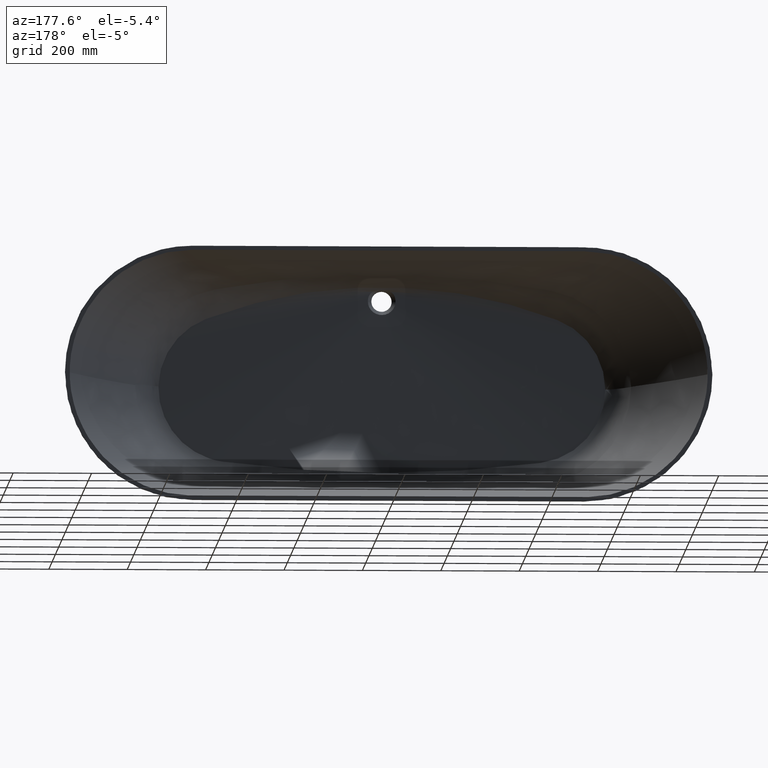
[diagram: clean part render]
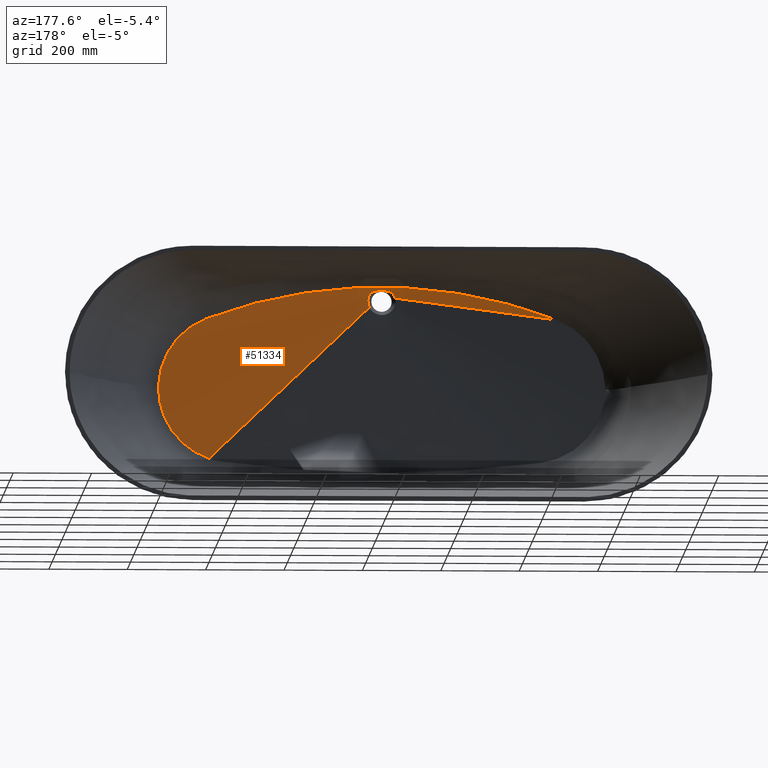
[diagram: same view with one face highlighted and labeled with its STEP entity id]
A machine part, auxiliary view. The second image highlights one B-rep face of the part: STEP entity #51334.
In plain terms, the highlighted face is a freeform B-spline surface patch.
Its self-contained STEP definition (entity closure, byte-faithful):
#37 = CARTESIAN_POINT ( 'NONE',  ( -23.00614516902584200, -424.0039371916735100, 248.7501181952682100 ) ) ;
#268 = CARTESIAN_POINT ( 'NONE',  ( -9.377975086289749700, -423.2680967660167000, 252.0080633974745600 ) ) ;
#493 = CARTESIAN_POINT ( 'NONE',  ( 2.124285967042967900, -422.7144712979068700, 252.7039210966738900 ) ) ;
#729 = CARTESIAN_POINT ( 'NONE',  ( 15.69031374276650600, -423.6030712241217800, 251.0214739815943100 ) ) ;
#806 = CARTESIAN_POINT ( 'NONE',  ( -472.9245815201917900, -413.0000000000009700, 166.5346253813009700 ) ) ;
#966 = CARTESIAN_POINT ( 'NONE',  ( 27.76263244139102300, -424.3417389187127900, 245.3370227152951500 ) ) ;
#1044 = CARTESIAN_POINT ( 'NONE',  ( -25.64593049620542000, -425.0000000000000600, 229.3394419978908200 ) ) ;
#1199 = CARTESIAN_POINT ( 'NONE',  ( 34.88302632799096900, -424.7480237833514100, 230.3919965032363800 ) ) ;
#1279 = CARTESIAN_POINT ( 'NONE',  ( -604.3700917869159600, -412.2307302581428400, -39.97847088234773600 ) ) ;
#1429 = CARTESIAN_POINT ( 'NONE',  ( 33.19555469158829900, -424.7988222293095100, 212.7357337632635400 ) ) ;
#1452 = VERTEX_POINT ( 'NONE', #54355 ) ;
#1509 = CARTESIAN_POINT ( 'NONE',  ( -535.8615676917243000, -412.8800000000009000, -120.4869199196747200 ) ) ;
#1736 = CARTESIAN_POINT ( 'NONE',  ( -458.1462615384935500, -412.9999999999985800, -173.9976856248993000 ) ) ;
#1959 = CARTESIAN_POINT ( 'NONE',  ( -23.15767781832331100, -425.0000000000000600, 213.1250764948728400 ) ) ;
#2059 = EDGE_CURVE ( 'NONE', #45975, #1452, #24423, .T. ) ;
#2191 = CARTESIAN_POINT ( 'NONE',  ( -102.9091206876793300, -412.2307302581443800, -240.5113001775968700 ) ) ;
#2425 = CARTESIAN_POINT ( 'NONE',  ( 197.5120452849969600, -412.8800000000002800, -213.4599540811258600 ) ) ;
#2656 = CARTESIAN_POINT ( 'NONE',  ( 386.4749614839070100, -413.0000000000000000, -190.7962144448329700 ) ) ;
#2884 = CARTESIAN_POINT ( 'NONE',  ( 24.73315166886579100, -425.0000000000000000, 216.9448197820347600 ) ) ;
#3110 = CARTESIAN_POINT ( 'NONE',  ( 582.4325061492073700, -412.2307302581436900, -109.1140688530420100 ) ) ;
#3335 = CARTESIAN_POINT ( 'NONE',  ( 576.1973316224718900, -412.8800000000011300, 8.389105814926363500 ) ) ;
#3561 = CARTESIAN_POINT ( 'NONE',  ( 539.3036150971332700, -413.0000000000000600, 105.2052511763196300 ) ) ;
#3789 = CARTESIAN_POINT ( 'NONE',  ( 24.66520390404318900, -425.0000000000000000, 233.2690036027954100 ) ) ;
#4014 = CARTESIAN_POINT ( 'NONE',  ( 353.8179101234497900, -412.2307302581444300, 213.6825440231752700 ) ) ;
#4231 = CARTESIAN_POINT ( 'NONE',  ( 111.5468464901684300, -412.8799999999979500, 256.8348277613864600 ) ) ;
#4403 = B_SPLINE_SURFACE_WITH_KNOTS ( 'NONE', 3, 1, ( 
 ( #11207, #5662, #48040, #16551 ),
 ( #53346, #21886, #58596, #27146 ),
 ( #63863, #32401, #806, #37709 ),
 ( #6126, #42971, #11445, #48272 ),
 ( #16789, #53584, #22121, #58831 ),
 ( #27383, #64100, #32638, #1044 ),
 ( #37943, #6372, #43222, #11680 ),
 ( #48510, #17021, #53827, #22361 ),
 ( #59071, #27615, #64334, #32867 ),
 ( #1279, #38176, #6602, #43452 ),
 ( #11913, #48739, #17259, #54053 ),
 ( #22589, #59303, #27851, #64567 ),
 ( #33097, #1509, #38411, #6832 ),
 ( #43679, #12141, #48975, #17496 ),
 ( #54285, #22811, #59527, #28075 ),
 ( #64795, #33325, #1736, #38637 ),
 ( #7059, #43899, #12374, #49198 ),
 ( #17717, #54503, #23040, #59751 ),
 ( #28297, #65021, #33548, #1959 ),
 ( #38855, #7289, #44122, #12609 ),
 ( #49431, #17954, #54737, #23270 ),
 ( #59980, #28525, #65248, #33782 ),
 ( #2191, #39083, #7519, #44352 ),
 ( #12833, #49667, #18184, #54965 ),
 ( #23499, #60209, #28755, #65470 ),
 ( #34011, #2425, #39313, #7746 ),
 ( #44578, #13067, #49888, #18404 ),
 ( #55197, #23720, #60440, #28979 ),
 ( #65694, #34243, #2656, #39544 ),
 ( #7971, #44806, #13299, #50121 ),
 ( #18634, #55423, #23945, #60669 ),
 ( #29207, #65918, #34473, #2884 ),
 ( #39769, #8203, #45036, #13528 ),
 ( #50349, #18860, #55644, #24172 ),
 ( #60901, #29429, #66142, #34700 ),
 ( #3110, #39999, #8430, #45268 ),
 ( #13755, #50576, #19088, #55869 ),
 ( #24390, #61131, #29652, #66363 ),
 ( #34927, #3335, #40222, #8657 ),
 ( #45495, #13982, #50795, #19317 ),
 ( #56090, #24616, #61352, #29880 ),
 ( #66592, #35151, #3561, #40443 ),
 ( #8884, #45717, #14205, #51025 ),
 ( #19548, #56311, #24838, #61560 ),
 ( #30100, #66809, #35371, #3789 ),
 ( #40665, #9107, #45939, #14428 ),
 ( #51241, #19774, #56523, #25066 ),
 ( #61786, #30321, #67038, #35596 ),
 ( #4014, #40887, #9326, #46159 ),
 ( #14657, #51464, #19999, #56742 ),
 ( #25276, #62000, #30534, #67257 ),
 ( #35821, #4231, #41098, #9552 ),
 ( #46386, #14872, #51683, #20213 ),
 ( #56966, #25498, #62213, #30747 ),
 ( #67468, #36038, #4453, #41312 ),
 ( #9772, #46603, #15098, #51908 ),
 ( #20439, #57187, #25709, #62424 ),
 ( #30965, #67687, #36261, #4684 ),
 ( #41529, #9993, #46830, #15327 ),
 ( #52137, #20671, #57410, #25942 ) ),
 .UNSPECIFIED., .T., .F., .F.,
 ( 4, 1, 1, 1, 1, 1, 1, 1, 1, 1, 1, 1, 1, 1, 1, 1, 2, 1, 1, 1, 1, 1, 1, 1, 1, 1, 2, 1, 1, 1, 1, 1, 1, 1, 1, 1, 1, 1, 1, 1, 1, 1, 2, 1, 1, 1, 1, 1, 1, 1, 1, 1, 1, 1, 4 ),
 ( 2, 1, 1, 2 ),
 ( 0.0000000000000000000, 0.009789906084926670900, 0.01957981216985334200, 0.02936971825478001300, 0.03915962433970668300, 0.04894953042463335400, 0.05873943650956002500, 0.06852934259448670300, 0.07831924867941336700, 0.08810915476434007200, 0.09789906084926670900, 0.1076889669341934100, 0.1174788730191200500, 0.1272687791040467100, 0.1370586851889734100, 0.1468485912739000700, 0.1566384973588267300, 0.1772706315125963700, 0.1979027656663660000, 0.2391670339739052600, 0.2804313022814445800, 0.3216955705889837900, 0.3629598388965230600, 0.4042241072040623200, 0.4454883755116015300, 0.4661205096653711600, 0.4867526438191408500, 0.4965425499040674900, 0.5063324559889941200, 0.5161223620739205900, 0.5259122681588474000, 0.5357021742437740900, 0.5454920803287007800, 0.5552819864136273600, 0.5650718924985539400, 0.5748617985834805200, 0.5846517046684072100, 0.5944416107533339000, 0.6042315168382606000, 0.6140214229231872900, 0.6238113290081138700, 0.6336012350930406700, 0.6433911411779671400, 0.6656791948543443500, 0.6879672485307213300, 0.7102553022070983200, 0.7325433558834754100, 0.7771194632362294900, 0.8216955705889834600, 0.8662716779417374300, 0.9108477852944918400, 0.9331358389708688300, 0.9554238926472459200, 0.9777119463236230200, 1.000000000000000000 ),
 ( -0.06410581182125049700, -0.01000000000000000000, 0.0000000000000000000, 1.000000000000000000 ),
 .UNSPECIFIED. ) ;
#4453 = CARTESIAN_POINT ( 'NONE',  ( -203.0174676373998800, -413.0000000000008500, 244.4955162070399100 ) ) ;
#4664 = EDGE_CURVE ( 'NONE', #26468, #36071, #42153, .T. ) ;
#4684 = CARTESIAN_POINT ( 'NONE',  ( -22.61037171766889700, -424.9999999999998300, 238.0103469052594400 ) ) ;
#5355 = CARTESIAN_POINT ( 'NONE',  ( -21.19016260995168800, -423.8888607256299100, 249.5151658318493700 ) ) ;
#5583 = CARTESIAN_POINT ( 'NONE',  ( -6.751508210510320600, -423.0596335890464300, 252.3193787758162300 ) ) ;
#5662 = CARTESIAN_POINT ( 'NONE',  ( -451.9384301143881500, -412.8799999999999400, 176.9567013647511800 ) ) ;
#5813 = CARTESIAN_POINT ( 'NONE',  ( 4.874370134034354200, -422.8977793420189100, 252.5160375787650700 ) ) ;
#6048 = CARTESIAN_POINT ( 'NONE',  ( 17.15854934086826200, -423.6724825633654600, 250.7072083389097400 ) ) ;
#6126 = CARTESIAN_POINT ( 'NONE',  ( -527.4754104765909200, -412.2307302581435800, 145.3026847286394600 ) ) ;
#6279 = DIRECTION ( 'NONE',  ( -0.0000000000000000000, 1.000000000000000000, 0.0000000000000000000 ) ) ;
#6291 = CARTESIAN_POINT ( 'NONE',  ( 29.84559506543139300, -424.4780048882767000, 242.8654840903834600 ) ) ;
#6372 = CARTESIAN_POINT ( 'NONE',  ( -560.2956419819437300, -412.8799999999998200, 74.91598099517411000 ) ) ;
#6526 = CARTESIAN_POINT ( 'NONE',  ( 35.20502090915803000, -424.7677007511783200, 228.1070074830586000 ) ) ;
#6602 = CARTESIAN_POINT ( 'NONE',  ( -569.5270514727965300, -412.9999999999979000, -24.04969616303700200 ) ) ;
#6832 = CARTESIAN_POINT ( 'NONE',  ( -25.66309770456551200, -424.9999999999999400, 220.7645783651565500 ) ) ;
#7059 = CARTESIAN_POINT ( 'NONE',  ( -457.4670301885919300, -412.2307302581455700, -209.2176118936307900 ) ) ;
#7289 = CARTESIAN_POINT ( 'NONE',  ( -353.6163247996503900, -412.8800000000011300, -199.2994853870328900 ) ) ;
#7519 = CARTESIAN_POINT ( 'NONE',  ( -97.17645390345886400, -412.9999999999994300, -213.9864225925093100 ) ) ;
#7746 = CARTESIAN_POINT ( 'NONE',  ( 14.68687794640235500, -424.9999999999996000, 203.1068667663373000 ) ) ;
#7971 = CARTESIAN_POINT ( 'NONE',  ( 438.6180550272307000, -412.2307302581449400, -212.9687812849229500 ) ) ;
#8005 = VERTEX_POINT ( 'NONE', #10193 ) ;
#8203 = CARTESIAN_POINT ( 'NONE',  ( 488.8999179313422600, -412.8799999999989200, -163.5546849981639400 ) ) ;
#8430 = CARTESIAN_POINT ( 'NONE',  ( 548.9009462141336800, -412.9999999999987500, -89.16688565439329800 ) ) ;
#8657 = CARTESIAN_POINT ( 'NONE',  ( 26.00164521189457600, -424.9999999999999400, 225.6411350953623600 ) ) ;
#8884 = CARTESIAN_POINT ( 'NONE',  ( 551.3639265220675700, -412.2307302581443200, 123.5937590579040500 ) ) ;
#9107 = CARTESIAN_POINT ( 'NONE',  ( 460.4462004833514500, -412.8800000000000000, 173.7163015704347800 ) ) ;
#9238 = EDGE_CURVE ( 'NONE', #23204, #26468, #63594, .T. ) ;
#9326 = CARTESIAN_POINT ( 'NONE',  ( 333.7391987864925800, -412.9999999999994900, 215.3346693951137900 ) ) ;
#9542 = CARTESIAN_POINT ( 'NONE',  ( 31.64920989516447500, -424.7916178865085600, 209.1908004947415000 ) ) ;
#9552 = CARTESIAN_POINT ( 'NONE',  ( 8.013395898508838000, -424.9999999999994300, 250.1661843449073500 ) ) ;
#9772 = CARTESIAN_POINT ( 'NONE',  ( -294.1612663967707700, -412.2307302581440900, 228.4865160901117600 ) ) ;
#9993 = CARTESIAN_POINT ( 'NONE',  ( -432.5693329029553500, -412.8800000000000500, 184.3339125373735500 ) ) ;
#10193 = CARTESIAN_POINT ( 'NONE',  ( 440.8288454479474000, -413.0000000000005700, -179.9996001925925400 ) ) ;
#10670 = CARTESIAN_POINT ( 'NONE',  ( -19.78583297508850700, -423.8074552895128000, 250.0000828005200000 ) ) ;
#10899 = CARTESIAN_POINT ( 'NONE',  ( -5.138951687234561300, -422.9209942016180400, 252.4865744169941300 ) ) ;
#11128 = CARTESIAN_POINT ( 'NONE',  ( 7.030997572019644300, -423.0834008253511300, 252.2880732407605300 ) ) ;
#11207 = CARTESIAN_POINT ( 'NONE',  ( -474.8566667971301200, -412.2307302581448900, 173.8631214653695200 ) ) ;
#11366 = CARTESIAN_POINT ( 'NONE',  ( 18.61368150619177100, -423.7449006511649300, 250.3427685512996000 ) ) ;
#11445 = CARTESIAN_POINT ( 'NONE',  ( -497.2088702518262800, -412.9999999999986400, 150.5207264173421000 ) ) ;
#11601 = CARTESIAN_POINT ( 'NONE',  ( 31.61706210016202700, -424.5797878172023700, 240.0379266712858500 ) ) ;
#11680 = CARTESIAN_POINT ( 'NONE',  ( -25.82574569260623000, -424.9999999999999400, 228.0915720901861100 ) ) ;
#11835 = CARTESIAN_POINT ( 'NONE',  ( 35.37009718514868700, -424.7871857087943700, 224.6689881159754000 ) ) ;
#11913 = CARTESIAN_POINT ( 'NONE',  ( -596.4584725396664500, -412.2307302581460800, -75.77157114929826800 ) ) ;
#12141 = CARTESIAN_POINT ( 'NONE',  ( -513.7296372684828600, -412.8799999999985200, -144.3865998639747700 ) ) ;
#12191 = CARTESIAN_POINT ( 'NONE',  ( -447.7026121915174600, -412.9999999999999400, 177.5284661749925300 ) ) ;
#12374 = CARTESIAN_POINT ( 'NONE',  ( -431.3687180890800600, -413.0000000000005700, -183.6252301000815800 ) ) ;
#12411 = B_SPLINE_CURVE_WITH_KNOTS ( 'NONE', 1,
 ( #56957, #9542 ),
 .UNSPECIFIED., .F., .F.,
 ( 2, 2 ),
 ( 0.0000000000000000000, 0.9826348465742146300 ),
 .UNSPECIFIED. ) ;
#12460 = CIRCLE ( 'NONE', #16115, 190.0000000000011400 ) ;
#12596 = DIRECTION ( 'NONE',  ( 0.0000000000000000000, 1.000000000000000000, 0.0000000000000000000 ) ) ;
#12609 = CARTESIAN_POINT ( 'NONE',  ( -22.05978417711159500, -425.0000000000002300, 211.0918644406233400 ) ) ;
#12833 = CARTESIAN_POINT ( 'NONE',  ( 1.152527138738638200E-012, -412.2307302581450000, -242.0535065062130400 ) ) ;
#13067 = CARTESIAN_POINT ( 'NONE',  ( 282.8303857923712000, -412.8800000000000500, -206.7127983625150900 ) ) ;
#13299 = CARTESIAN_POINT ( 'NONE',  ( 413.6312309261725800, -413.0000000000000000, -187.2074881752940000 ) ) ;
#13528 = CARTESIAN_POINT ( 'NONE',  ( 25.12000579887958900, -425.0000000000000000, 218.2490455710581300 ) ) ;
#13755 = CARTESIAN_POINT ( 'NONE',  ( 596.4584725396623500, -412.2307302581465900, -75.77157114929858000 ) ) ;
#13982 = CARTESIAN_POINT ( 'NONE',  ( 571.1550336732996100, -412.8799999999992600, 42.67722513740156400 ) ) ;
#14034 = ORIENTED_EDGE ( 'NONE', *, *, #9238, .F. ) ;
#14205 = CARTESIAN_POINT ( 'NONE',  ( 519.6777619804890900, -412.9999999999993700, 130.0409219225665000 ) ) ;
#14428 = CARTESIAN_POINT ( 'NONE',  ( 24.31761219937280300, -425.0000000000000600, 234.2158390825534600 ) ) ;
#14657 = CARTESIAN_POINT ( 'NONE',  ( 294.1612663967719600, -412.2307302581448300, 228.4865160901119300 ) ) ;
#14750 = ORIENTED_EDGE ( 'NONE', *, *, #61551, .T. ) ;
#14872 = CARTESIAN_POINT ( 'NONE',  ( -2.530007453538374300E-013, -412.8800000000031800, 261.7170181267202300 ) ) ;
#15098 = CARTESIAN_POINT ( 'NONE',  ( -277.5220847558262000, -412.9999999999991500, 229.4165822163957100 ) ) ;
#15327 = CARTESIAN_POINT ( 'NONE',  ( -23.67279923112390000, -425.0000000000000000, 235.8184669594253400 ) ) ;
#15558 = CARTESIAN_POINT ( 'NONE',  ( -32.18708232460485200, -424.6099046468338000, 238.9268546912573200 ) ) ;
#15789 = CARTESIAN_POINT ( 'NONE',  ( -30.55741945715123400, -424.5204891391641700, 241.8249126513067000 ) ) ;
#15898 = EDGE_LOOP ( 'NONE', ( #23624, #42324, #23372, #67288, #45858, #14034, #29328, #14750 ) ) ;
#16017 = CARTESIAN_POINT ( 'NONE',  ( -17.40544671571310100, -423.6840126749089600, 250.6574709944813700 ) ) ;
#16115 = AXIS2_PLACEMENT_3D ( 'NONE', #23257, #59967, #28512 ) ;
#16245 = CARTESIAN_POINT ( 'NONE',  ( -3.489452227484015200, -422.7930422087893600, 252.6244664096834900 ) ) ;
#16471 = CARTESIAN_POINT ( 'NONE',  ( 8.621428815399719200, -423.2107894868991000, 252.1000534786832600 ) ) ;
#16551 = CARTESIAN_POINT ( 'NONE',  ( -24.12082105528281400, -424.9999999999999400, 234.7049467602364800 ) ) ;
#16708 = CARTESIAN_POINT ( 'NONE',  ( 20.04214442615498700, -423.8217832598217600, 249.9181334461131000 ) ) ;
#16789 = CARTESIAN_POINT ( 'NONE',  ( -551.3639265220705300, -412.2307302581461400, 123.5937590579041900 ) ) ;
#16945 = CARTESIAN_POINT ( 'NONE',  ( 33.04843369284768100, -424.6537166508703600, 236.9792205967713400 ) ) ;
#17021 = CARTESIAN_POINT ( 'NONE',  ( -571.1550336732963200, -412.8799999999984600, 42.67722513740130100 ) ) ;
#17179 = CARTESIAN_POINT ( 'NONE',  ( 35.18797560452501500, -424.7981215906460800, 221.2235130608945300 ) ) ;
#17259 = CARTESIAN_POINT ( 'NONE',  ( -562.0887389060720800, -413.0000000000011400, -57.75963181893661900 ) ) ;
#17496 = CARTESIAN_POINT ( 'NONE',  ( -25.42655032544940900, -425.0000000000005700, 219.5188180622971900 ) ) ;
#17717 = CARTESIAN_POINT ( 'NONE',  ( -438.6180550272293300, -412.2307302581449400, -212.9687812849231000 ) ) ;
#17954 = CARTESIAN_POINT ( 'NONE',  ( -282.8303857923682500, -412.8799999999983500, -206.7127983625143800 ) ) ;
#18184 = CARTESIAN_POINT ( 'NONE',  ( 1.082467449009527600E-012, -413.0000000000000600, -215.5063230728575300 ) ) ;
#18404 = CARTESIAN_POINT ( 'NONE',  ( 19.27111841999782600, -424.9999999999999400, 207.2606567239894300 ) ) ;
#18634 = CARTESIAN_POINT ( 'NONE',  ( 457.4670301885923900, -412.2307302581440400, -209.2176118936308200 ) ) ;
#18721 = CARTESIAN_POINT ( 'NONE',  ( 32.98386762553403900, -424.7978943663275100, 212.1921240972101000 ) ) ;
#18860 = CARTESIAN_POINT ( 'NONE',  ( 513.7296372684840000, -412.8799999999998800, -144.3865998639741100 ) ) ;
#19088 = CARTESIAN_POINT ( 'NONE',  ( 562.0887389060686700, -413.0000000000016500, -57.75963181893693800 ) ) ;
#19317 = CARTESIAN_POINT ( 'NONE',  ( 25.94275871888330400, -424.9999999999998300, 226.8610917259134100 ) ) ;
#19548 = CARTESIAN_POINT ( 'NONE',  ( 527.4754104765935400, -412.2307302581459700, 145.3026847286402600 ) ) ;
#19774 = CARTESIAN_POINT ( 'NONE',  ( 432.5693329029551800, -412.8800000000000000, 184.3339125373736400 ) ) ;
#19999 = CARTESIAN_POINT ( 'NONE',  ( 277.5220847558270500, -412.9999999999998900, 229.4165822163959100 ) ) ;
#20213 = CARTESIAN_POINT ( 'NONE',  ( 7.025630077706068700E-014, -425.0000000000011900, 251.4178054357739100 ) ) ;
#20439 = CARTESIAN_POINT ( 'NONE',  ( -353.8179101234496200, -412.2307302581451200, 213.6825440231758900 ) ) ;
#20671 = CARTESIAN_POINT ( 'NONE',  ( -451.9384301143881500, -412.8799999999999400, 176.9567013647511800 ) ) ;
#21121 = CARTESIAN_POINT ( 'NONE',  ( -28.59402481241612300, -424.3981152294927000, 244.4419893256944900 ) ) ;
#21350 = CARTESIAN_POINT ( 'NONE',  ( -14.47084490256797900, -423.5469374090911900, 251.2555292539621000 ) ) ;
#21577 = CARTESIAN_POINT ( 'NONE',  ( -1.799793352768452400, -422.7006948280216000, 252.7175777197255400 ) ) ;
#21816 = CARTESIAN_POINT ( 'NONE',  ( 10.17644375736940400, -423.3182977240077800, 251.9019326725115500 ) ) ;
#21886 = CARTESIAN_POINT ( 'NONE',  ( -460.4462004833515000, -412.8799999999999400, 173.7163015704348400 ) ) ;
#22042 = CARTESIAN_POINT ( 'NONE',  ( 21.90525831275142800, -423.9319485820295800, 249.2471838694693500 ) ) ;
#22121 = CARTESIAN_POINT ( 'NONE',  ( -519.6777619804913700, -413.0000000000011900, 130.0409219225666400 ) ) ;
#22281 = CARTESIAN_POINT ( 'NONE',  ( 33.80057695203326800, -424.6913117444933100, 234.8401900561784700 ) ) ;
#22361 = CARTESIAN_POINT ( 'NONE',  ( -25.94275871888331500, -424.9999999999999400, 226.8610917259137500 ) ) ;
#22514 = CARTESIAN_POINT ( 'NONE',  ( 34.65526766984432800, -424.8022984908327500, 217.7739669901885100 ) ) ;
#22589 = CARTESIAN_POINT ( 'NONE',  ( -582.4325061492049800, -412.2307302581436400, -109.1140688530431800 ) ) ;
#22811 = CARTESIAN_POINT ( 'NONE',  ( -488.8999179313427700, -412.8800000000021600, -163.5546849981642800 ) ) ;
#23040 = CARTESIAN_POINT ( 'NONE',  ( -413.6312309261712700, -413.0000000000000000, -187.2074881752941700 ) ) ;
#23204 = VERTEX_POINT ( 'NONE', #12191 ) ;
#23257 = CARTESIAN_POINT ( 'NONE',  ( 379.9999999999998900, -413.0000000000000000, 0.0000000000000000000 ) ) ;
#23270 = CARTESIAN_POINT ( 'NONE',  ( -19.27111841999782300, -425.0000000000004000, 207.2606567239897100 ) ) ;
#23372 = ORIENTED_EDGE ( 'NONE', *, *, #2059, .F. ) ;
#23476 = CARTESIAN_POINT ( 'NONE',  ( -34.23442367268334200, -424.7134830411819200, 233.3397787846993500 ) ) ;
#23499 = CARTESIAN_POINT ( 'NONE',  ( 102.9091206876826200, -412.2307302581444900, -240.5113001775966900 ) ) ;
#23532 = B_SPLINE_CURVE_WITH_KNOTS ( 'NONE', 3,
 ( #31408, #15558, #47278, #15789, #52594, #21121, #57857, #26385, #63110, #31638, #37, #36936, #5355, #42205, #10670, #47500, #16017, #52824, #21350, #58072, #26611, #63338, #31865, #268, #37165, #5583, #42425, #10899, #47726, #16245, #53041, #21577, #58295, #26834, #63567, #32091, #493, #37395, #5813, #42659, #11128, #47961, #16471, #53273, #21816, #58521, #27071, #63788, #32324, #729, #37627, #6048, #42892, #11366, #48194, #16708, #53503, #22042, #58752, #27304, #64021, #32561, #966, #37863, #6291, #43138, #11601, #48431, #16945, #53746, #22281, #58989, #27538, #64254, #32790, #1199, #38098, #6526, #43377, #11835, #48660, #17179, #53978, #22514, #59226, #27775, #64489, #33021, #1429, #38335 ),
 .UNSPECIFIED., .F., .F.,
 ( 4, 2, 2, 2, 2, 2, 2, 2, 2, 2, 2, 2, 2, 2, 2, 2, 2, 2, 2, 2, 2, 2, 2, 2, 2, 2, 2, 2, 2, 2, 2, 2, 2, 2, 2, 2, 2, 2, 2, 2, 2, 2, 2, 2, 4 ),
 ( 0.0000000000000000000, 0.01562500000000000300, 0.03125000000000000000, 0.04687499999999999300, 0.06250000000000000000, 0.07812499999999998600, 0.08593749999999998600, 0.09374999999999998600, 0.1093750000000000000, 0.1250000000000000000, 0.1328125000000000000, 0.1406249999999999700, 0.1562499999999999700, 0.1640624999999999700, 0.1718749999999999700, 0.1796874999999999700, 0.1874999999999999700, 0.1953125000000000000, 0.2031250000000000000, 0.2187500000000000000, 0.2265625000000000000, 0.2343750000000000000, 0.2421875000000000000, 0.2500000000000000000, 0.2656250000000000000, 0.2734375000000000000, 0.2812499999999999400, 0.2890624999999998900, 0.2968749999999999400, 0.3124999999999999400, 0.3281249999999999400, 0.3437499999999999400, 0.3593749999999999400, 0.3749999999999999400, 0.3906250000000000000, 0.3984375000000000000, 0.4062500000000000000, 0.4140624999999999400, 0.4218750000000000000, 0.4375000000000000000, 0.4531250000000000000, 0.4687500000000000000, 0.4843750000000000000, 0.4921875000000000600, 0.5000000000000000000 ),
 .UNSPECIFIED. ) ;
#23624 = ORIENTED_EDGE ( 'NONE', *, *, #61651, .T. ) ;
#23720 = CARTESIAN_POINT ( 'NONE',  ( 353.6163247996518100, -412.8800000000000500, -199.2994853870318700 ) ) ;
#23945 = CARTESIAN_POINT ( 'NONE',  ( 431.3687180890805700, -412.9999999999990900, -183.6252301000816100 ) ) ;
#24028 = CARTESIAN_POINT ( 'NONE',  ( 569.9588031353129100, -413.0000000000000600, 3.964875688768841200 ) ) ;
#24172 = CARTESIAN_POINT ( 'NONE',  ( 25.42655032544936600, -425.0000000000000600, 219.5188180622970700 ) ) ;
#24390 = CARTESIAN_POINT ( 'NONE',  ( 604.3700917869208500, -412.2307302581436900, -39.97847088234704700 ) ) ;
#24423 = B_SPLINE_CURVE_WITH_KNOTS ( 'NONE', 3,
 ( #43524, #60196, #64866, #64778, #64702, #64550 ),
 .UNSPECIFIED., .F., .F.,
 ( 4, 2, 4 ),
 ( 0.5000000000000000000, 0.5078125000000000000, 0.5147401693609572300 ),
 .UNSPECIFIED. ) ;
#24616 = CARTESIAN_POINT ( 'NONE',  ( 560.2956419819424800, -412.8800000000001700, 74.91598099517463500 ) ) ;
#24838 = CARTESIAN_POINT ( 'NONE',  ( 497.2088702518288400, -413.0000000000010200, 150.5207264173428700 ) ) ;
#25066 = CARTESIAN_POINT ( 'NONE',  ( 23.67279923112389300, -425.0000000000000000, 235.8184669594253100 ) ) ;
#25276 = CARTESIAN_POINT ( 'NONE',  ( 215.1365342615576400, -412.2307302581457400, 244.3222729889788000 ) ) ;
#25498 = CARTESIAN_POINT ( 'NONE',  ( -111.5468464901661300, -412.8799999999974900, 256.8348277613857200 ) ) ;
#25709 = CARTESIAN_POINT ( 'NONE',  ( -333.7391987864924700, -413.0000000000001700, 215.3346693951143900 ) ) ;
#25942 = CARTESIAN_POINT ( 'NONE',  ( -24.12082105528281400, -424.9999999999999400, 234.7049467602364800 ) ) ;
#26385 = CARTESIAN_POINT ( 'NONE',  ( -26.35380226003384200, -424.2420417949503000, 246.6175377391864700 ) ) ;
#26468 = VERTEX_POINT ( 'NONE', #23476 ) ;
#26611 = CARTESIAN_POINT ( 'NONE',  ( -12.46146290061701500, -423.4483919181087700, 251.5794365694857200 ) ) ;
#26834 = CARTESIAN_POINT ( 'NONE',  ( -0.1093138159634339100, -422.6650846592649500, 252.7523644645595800 ) ) ;
#27071 = CARTESIAN_POINT ( 'NONE',  ( 11.70495940981603900, -423.4082211652025200, 251.6912844161099400 ) ) ;
#27146 = CARTESIAN_POINT ( 'NONE',  ( -24.31761219937280700, -424.9999999999999400, 234.2158390825534600 ) ) ;
#27304 = CARTESIAN_POINT ( 'NONE',  ( 24.55706440402243000, -424.1118192285828700, 247.8970911545242500 ) ) ;
#27383 = CARTESIAN_POINT ( 'NONE',  ( -572.2320579666978800, -412.2307302581442600, 97.24752809892804400 ) ) ;
#27538 = CARTESIAN_POINT ( 'NONE',  ( 34.27730588233473700, -424.7156875934055600, 233.1972190378954800 ) ) ;
#27615 = CARTESIAN_POINT ( 'NONE',  ( -576.1973316224747400, -412.8800000000023800, 8.389105814926345800 ) ) ;
#27775 = CARTESIAN_POINT ( 'NONE',  ( 33.93280349270492700, -424.8014401713322700, 214.9526306190246900 ) ) ;
#27851 = CARTESIAN_POINT ( 'NONE',  ( -548.9009462141311800, -412.9999999999986900, -89.16688565439444900 ) ) ;
#28075 = CARTESIAN_POINT ( 'NONE',  ( -25.12000579887960300, -425.0000000000001100, 218.2490455710581300 ) ) ;
#28297 = CARTESIAN_POINT ( 'NONE',  ( -409.7657109019787100, -412.2307302581449400, -216.6899167124108500 ) ) ;
#28512 = DIRECTION ( 'NONE',  ( 0.0000000000000000000, 0.0000000000000000000, 1.000000000000000000 ) ) ;
#28525 = CARTESIAN_POINT ( 'NONE',  ( -197.5120452849957900, -412.8800000000010200, -213.4599540811266800 ) ) ;
#28755 = CARTESIAN_POINT ( 'NONE',  ( 97.17645390346196200, -412.9999999999995500, -213.9864225925091400 ) ) ;
#28979 = CARTESIAN_POINT ( 'NONE',  ( 22.05978417711162400, -425.0000000000000000, 211.0918644406232800 ) ) ;
#29207 = CARTESIAN_POINT ( 'NONE',  ( 485.9305608006616800, -412.2307302581461400, -199.0593723094436300 ) ) ;
#29328 = ORIENTED_EDGE ( 'NONE', *, *, #68322, .T. ) ;
#29429 = CARTESIAN_POINT ( 'NONE',  ( 535.8615676917236200, -412.8800000000008500, -120.4869199196745300 ) ) ;
#29652 = CARTESIAN_POINT ( 'NONE',  ( 569.5270514728008500, -412.9999999999987500, -24.04969616303633400 ) ) ;
#29730 = CIRCLE ( 'NONE', #62411, 1256.428571428589100 ) ;
#29880 = CARTESIAN_POINT ( 'NONE',  ( 25.82574569260621900, -424.9999999999999400, 228.0915720901860500 ) ) ;
#30100 = CARTESIAN_POINT ( 'NONE',  ( 501.6606128287607500, -412.2307302581440400, 162.2565638890251300 ) ) ;
#30321 = CARTESIAN_POINT ( 'NONE',  ( 394.0663947824201000, -412.8800000000002800, 197.9143158034782700 ) ) ;
#30534 = CARTESIAN_POINT ( 'NONE',  ( 203.0174676373996500, -413.0000000000007400, 244.4955162070387200 ) ) ;
#30747 = CARTESIAN_POINT ( 'NONE',  ( -8.013395898508971300, -424.9999999999990300, 250.1661843449075500 ) ) ;
#30965 = CARTESIAN_POINT ( 'NONE',  ( -413.9653350634217200, -412.2307302581447700, 195.7663669781590800 ) ) ;
#31408 = CARTESIAN_POINT ( 'NONE',  ( -32.63960049328456800, -424.6329795681011800, 237.8988011320558400 ) ) ;
#31638 = CARTESIAN_POINT ( 'NONE',  ( -23.87879446449657600, -424.0643467892248300, 248.2970804556047700 ) ) ;
#31865 = CARTESIAN_POINT ( 'NONE',  ( -10.92596519133007500, -423.3641893190850900, 251.8008375015821500 ) ) ;
#32091 = CARTESIAN_POINT ( 'NONE',  ( 1.568479346010544800, -422.6920441635774100, 252.7259695686981900 ) ) ;
#32192 = CIRCLE ( 'NONE', #64124, 190.0000000000011400 ) ;
#32324 = CARTESIAN_POINT ( 'NONE',  ( 14.21115666422563500, -423.5340285427749300, 251.3024331926683300 ) ) ;
#32401 = CARTESIAN_POINT ( 'NONE',  ( -477.4071752963532700, -412.8800000000009600, 165.8672815990860300 ) ) ;
#32561 = CARTESIAN_POINT ( 'NONE',  ( 27.00280879966450300, -424.2881826888498200, 246.0617867056921000 ) ) ;
#32638 = CARTESIAN_POINT ( 'NONE',  ( -539.3036150971320200, -412.9999999999993200, 105.2052511763189200 ) ) ;
#32790 = CARTESIAN_POINT ( 'NONE',  ( 34.66949484249919800, -424.7362659915946200, 231.5259788187598200 ) ) ;
#32867 = CARTESIAN_POINT ( 'NONE',  ( -26.00164521189459100, -425.0000000000002800, 225.6411350953623900 ) ) ;
#32971 = CARTESIAN_POINT ( 'NONE',  ( -32.63960049328456800, -424.6329795681011800, 237.8988011320558400 ) ) ;
#33021 = CARTESIAN_POINT ( 'NONE',  ( 33.39450380582577100, -424.7996314848348300, 213.2872608597443800 ) ) ;
#33097 = CARTESIAN_POINT ( 'NONE',  ( -563.1929562151054800, -412.2307302581459100, -138.7678004641488500 ) ) ;
#33325 = CARTESIAN_POINT ( 'NONE',  ( -462.4803926371898200, -412.8799999999985700, -177.9071106789686500 ) ) ;
#33548 = CARTESIAN_POINT ( 'NONE',  ( -386.4749614839050200, -413.0000000000000000, -190.7962144448334000 ) ) ;
#33782 = CARTESIAN_POINT ( 'NONE',  ( -14.68687794640236400, -424.9999999999988600, 203.1068667663367600 ) ) ;
#34011 = CARTESIAN_POINT ( 'NONE',  ( 207.3060097406510100, -412.2307302581452900, -235.7754847937490300 ) ) ;
#34243 = CARTESIAN_POINT ( 'NONE',  ( 390.1081343205628400, -412.8800000000000000, -194.8354273542300300 ) ) ;
#34473 = CARTESIAN_POINT ( 'NONE',  ( 458.1462615384962200, -413.0000000000011900, -173.9976856248985900 ) ) ;
#34700 = CARTESIAN_POINT ( 'NONE',  ( 25.66309770456549800, -425.0000000000000600, 220.7645783651563800 ) ) ;
#34927 = CARTESIAN_POINT ( 'NONE',  ( 605.6713754579118400, -412.2307302581460800, -3.249109446491528000 ) ) ;
#35151 = CARTESIAN_POINT ( 'NONE',  ( 544.4401919431426200, -412.8800000000000500, 103.9639092681039200 ) ) ;
#35371 = CARTESIAN_POINT ( 'NONE',  ( 472.9245815201892900, -412.9999999999990900, 166.5346253813004300 ) ) ;
#35596 = CARTESIAN_POINT ( 'NONE',  ( 22.61037171766888700, -424.9999999999999400, 238.0103469052593300 ) ) ;
#35821 = CARTESIAN_POINT ( 'NONE',  ( 117.0931449009774100, -412.2307302581429600, 257.1920677275201700 ) ) ;
#36038 = CARTESIAN_POINT ( 'NONE',  ( -204.9079462507820900, -412.8800000000008500, 244.4684916342066600 ) ) ;
#36071 = VERTEX_POINT ( 'NONE', #32971 ) ;
#36261 = CARTESIAN_POINT ( 'NONE',  ( -390.3886123758385900, -412.9999999999998300, 198.3113062104261800 ) ) ;
#36936 = CARTESIAN_POINT ( 'NONE',  ( -21.65071037843365400, -423.9171937059317100, 249.3353159679277800 ) ) ;
#37165 = CARTESIAN_POINT ( 'NONE',  ( -8.338218655831816800, -423.1913889415802100, 252.1374543852362300 ) ) ;
#37395 = CARTESIAN_POINT ( 'NONE',  ( 3.782309984656260700, -422.8057866601942000, 252.6117314735145100 ) ) ;
#37627 = CARTESIAN_POINT ( 'NONE',  ( 16.18120797144615600, -423.6259560432776000, 250.9218297402516100 ) ) ;
#37709 = CARTESIAN_POINT ( 'NONE',  ( -24.66520390404319600, -425.0000000000000000, 233.2690036027954900 ) ) ;
#37852 = CARTESIAN_POINT ( 'NONE',  ( -1.110223024625156500E-013, -413.0000000000000000, -996.4285714285887300 ) ) ;
#37863 = CARTESIAN_POINT ( 'NONE',  ( 29.18619195727119100, -424.4367709720783600, 243.7348626174412800 ) ) ;
#37943 = CARTESIAN_POINT ( 'NONE',  ( -588.9272534995224100, -412.2307302581447700, 66.71034762151518300 ) ) ;
#38098 = CARTESIAN_POINT ( 'NONE',  ( 34.97502325758620100, -424.7533406963982000, 229.8201819955557100 ) ) ;
#38176 = CARTESIAN_POINT ( 'NONE',  ( -574.9622903886181600, -412.8799999999978400, -26.53445913019600900 ) ) ;
#38335 = CARTESIAN_POINT ( 'NONE',  ( 32.98386762553403900, -424.7978943663275100, 212.1921240972101000 ) ) ;
#38411 = CARTESIAN_POINT ( 'NONE',  ( -530.8100976918515200, -413.0000000000009100, -117.1081922138843100 ) ) ;
#38637 = CARTESIAN_POINT ( 'NONE',  ( -24.73315166886576200, -424.9999999999994900, 216.9448197820346100 ) ) ;
#38855 = CARTESIAN_POINT ( 'NONE',  ( -371.3778453887869100, -412.2307302581460800, -221.2841954334132600 ) ) ;
#39083 = CARTESIAN_POINT ( 'NONE',  ( -98.07070461511121100, -412.8799999999994300, -218.1240938631030100 ) ) ;
#39313 = CARTESIAN_POINT ( 'NONE',  ( 195.7018951133277400, -413.0000000000002800, -209.3355301123391100 ) ) ;
#39544 = CARTESIAN_POINT ( 'NONE',  ( 23.15767781832333600, -425.0000000000000000, 213.1250764948729300 ) ) ;
#39769 = CARTESIAN_POINT ( 'NONE',  ( 513.7446591712581500, -412.2307302581438600, -184.0079531158172000 ) ) ;
#39999 = CARTESIAN_POINT ( 'NONE',  ( 554.1316045557784900, -412.8799999999987400, -92.27848858585112200 ) ) ;
#40137 = FACE_OUTER_BOUND ( 'NONE', #15898, .T. ) ;
#40222 = CARTESIAN_POINT ( 'NONE',  ( 570.7498495788028100, -413.0000000000011400, 10.54011600582176900 ) ) ;
#40443 = CARTESIAN_POINT ( 'NONE',  ( 25.64593049620540900, -425.0000000000001700, 229.3394419978910700 ) ) ;
#40665 = CARTESIAN_POINT ( 'NONE',  ( 483.8096572433124700, -412.2307302581449400, 170.4753346477582200 ) ) ;
#40887 = CARTESIAN_POINT ( 'NONE',  ( 336.8713190680271100, -412.8799999999994800, 215.0769508942475500 ) ) ;
#41098 = CARTESIAN_POINT ( 'NONE',  ( 110.5217628209440900, -412.9999999999979500, 256.7688015889460800 ) ) ;
#41312 = CARTESIAN_POINT ( 'NONE',  ( -13.96960629917643000, -425.0000000000008000, 247.1979734903650900 ) ) ;
#41529 = CARTESIAN_POINT ( 'NONE',  ( -454.4739654823709400, -412.2307302581450000, 181.5758792569176600 ) ) ;
#42153 = B_SPLINE_CURVE_WITH_KNOTS ( 'NONE', 3,
 ( #66209, #62860, #66566, #66288, #67890, #67838, #67749, #67674 ),
 .UNSPECIFIED., .F., .F.,
 ( 4, 2, 2, 4 ),
 ( 0.9778757137472122700, 0.9804687500000001100, 0.9843750000000001100, 1.000000000000000000 ),
 .UNSPECIFIED. ) ;
#42205 = CARTESIAN_POINT ( 'NONE',  ( -20.25608180419611100, -423.8339018328355200, 249.8480543876639500 ) ) ;
#42324 = ORIENTED_EDGE ( 'NONE', *, *, #66853, .T. ) ;
#42425 = CARTESIAN_POINT ( 'NONE',  ( -6.217899937111937400, -423.0132090949349500, 252.3777571146872800 ) ) ;
#42659 = CARTESIAN_POINT ( 'NONE',  ( 6.493040136257816300, -423.0371175149090300, 252.3480318260293400 ) ) ;
#42892 = CARTESIAN_POINT ( 'NONE',  ( 17.64576852769475600, -423.6961639185935800, 250.5920526023759900 ) ) ;
#42971 = CARTESIAN_POINT ( 'NONE',  ( -501.9302113229227300, -412.8799999999986300, 149.7067531533809000 ) ) ;
#43125 = DIRECTION ( 'NONE',  ( 0.0000000000000000000, 0.0000000000000000000, -1.000000000000000000 ) ) ;
#43138 = CARTESIAN_POINT ( 'NONE',  ( 31.06034027383569900, -424.5494242884509500, 241.0187474826438700 ) ) ;
#43222 = CARTESIAN_POINT ( 'NONE',  ( -555.0038608305641200, -412.9999999999998300, 76.43257100601580600 ) ) ;
#43377 = CARTESIAN_POINT ( 'NONE',  ( 35.29866950281106600, -424.7752164434307400, 226.9619140943148400 ) ) ;
#43452 = CARTESIAN_POINT ( 'NONE',  ( -26.00315989063859900, -425.0000000000004000, 224.4266005528635600 ) ) ;
#43524 = CARTESIAN_POINT ( 'NONE',  ( 32.98386762553403900, -424.7978943663275100, 212.1921240972101000 ) ) ;
#43679 = CARTESIAN_POINT ( 'NONE',  ( -539.8880876980622400, -412.2307302581435200, -163.8810533917494500 ) ) ;
#43899 = CARTESIAN_POINT ( 'NONE',  ( -435.4398485151767200, -412.8800000000005600, -187.6174393969406300 ) ) ;
#44110 = CARTESIAN_POINT ( 'NONE',  ( 379.9999999999998900, -413.0000000000000000, 0.0000000000000000000 ) ) ;
#44122 = CARTESIAN_POINT ( 'NONE',  ( -350.3335867736846600, -413.0000000000011400, -195.2362046956699300 ) ) ;
#44352 = CARTESIAN_POINT ( 'NONE',  ( -7.751382738224377200, -425.0000000000006800, 199.7807044668639100 ) ) ;
#44578 = CARTESIAN_POINT ( 'NONE',  ( 296.9492849252387700, -412.2307302581450000, -228.8894021842016000 ) ) ;
#44806 = CARTESIAN_POINT ( 'NONE',  ( 417.5289780088755300, -412.8800000000000000, -191.2260463025135100 ) ) ;
#45036 = CARTESIAN_POINT ( 'NONE',  ( 484.3080376131990800, -412.9999999999989200, -159.7744500420330400 ) ) ;
#45268 = CARTESIAN_POINT ( 'NONE',  ( 25.83511204964724700, -425.0000000000000600, 221.9934074913893500 ) ) ;
#45495 = CARTESIAN_POINT ( 'NONE',  ( 600.3621156052991000, -412.2307302581442100, 32.81047501250221600 ) ) ;
#45717 = CARTESIAN_POINT ( 'NONE',  ( 524.6205532253657100, -412.8799999999993700, 129.0352154692047600 ) ) ;
#45858 = ORIENTED_EDGE ( 'NONE', *, *, #4664, .F. ) ;
#45939 = CARTESIAN_POINT ( 'NONE',  ( 456.1280956488565700, -413.0000000000000000, 174.3153068923369300 ) ) ;
#45975 = VERTEX_POINT ( 'NONE', #18721 ) ;
#46159 = CARTESIAN_POINT ( 'NONE',  ( 20.52717063304720200, -424.9999999999999400, 241.1065194817368300 ) ) ;
#46162 = VERTEX_POINT ( 'NONE', #24028 ) ;
#46386 = CARTESIAN_POINT ( 'NONE',  ( -2.703176611041855900E-013, -412.2307302581484100, 262.2687480908425100 ) ) ;
#46603 = CARTESIAN_POINT ( 'NONE',  ( -280.1176655882381400, -412.8799999999991400, 229.2714992512384500 ) ) ;
#46830 = CARTESIAN_POINT ( 'NONE',  ( -428.5208523715510900, -413.0000000000000600, 184.8436606009582300 ) ) ;
#47278 = CARTESIAN_POINT ( 'NONE',  ( -31.68044708431673600, -424.5834081351347300, 239.9209696978207100 ) ) ;
#47500 = CARTESIAN_POINT ( 'NONE',  ( -18.36609056423750300, -423.7311202742049000, 250.4212439028695800 ) ) ;
#47573 = CARTESIAN_POINT ( 'NONE',  ( 447.7026121901909100, -413.0000000000000000, 177.5284661754984400 ) ) ;
#47726 = CARTESIAN_POINT ( 'NONE',  ( -4.593547710986453800, -422.8753323402005400, 252.5369246385613700 ) ) ;
#47961 = CARTESIAN_POINT ( 'NONE',  ( 8.096393417110816100, -423.1703689893612900, 252.1639002898398600 ) ) ;
#48040 = CARTESIAN_POINT ( 'NONE',  ( -447.7026122029119500, -413.0000000000000000, 177.5284661706471100 ) ) ;
#48194 = CARTESIAN_POINT ( 'NONE',  ( 19.09281799178208800, -423.7698822662164800, 250.2090625947082000 ) ) ;
#48272 = CARTESIAN_POINT ( 'NONE',  ( -25.07476314219139700, -425.0000000000000600, 231.9180528134636500 ) ) ;
#48431 = CARTESIAN_POINT ( 'NONE',  ( 32.60908316491439500, -424.6317655847418600, 238.0210801891377300 ) ) ;
#48510 = CARTESIAN_POINT ( 'NONE',  ( -600.3621156052958000, -412.2307302581434700, 32.81047501250191800 ) ) ;
#48660 = CARTESIAN_POINT ( 'NONE',  ( 35.34790858740593900, -424.7916243018015600, 223.5209117864124300 ) ) ;
#48739 = CARTESIAN_POINT ( 'NONE',  ( -567.4501457203916700, -412.8800000000011300, -60.56935200165347800 ) ) ;
#48975 = CARTESIAN_POINT ( 'NONE',  ( -508.8949532393439800, -412.9999999999985200, -140.7835759241106600 ) ) ;
#49198 = CARTESIAN_POINT ( 'NONE',  ( -24.25567547941756900, -424.9999999999997700, 215.5956995858219900 ) ) ;
#49418 = DIRECTION ( 'NONE',  ( 0.0000000000000000000, 0.0000000000000000000, 1.000000000000000000 ) ) ;
#49431 = CARTESIAN_POINT ( 'NONE',  ( -296.9492849252358200, -412.2307302581433500, -228.8894021842007200 ) ) ;
#49667 = CARTESIAN_POINT ( 'NONE',  ( 1.093396206908181500E-012, -412.8800000000000500, -219.6474738794924000 ) ) ;
#49888 = CARTESIAN_POINT ( 'NONE',  ( 280.2208880956150100, -413.0000000000000600, -202.6140512824506700 ) ) ;
#50121 = CARTESIAN_POINT ( 'NONE',  ( 23.85652265588297600, -425.0000000000000600, 214.6483245466538400 ) ) ;
#50349 = CARTESIAN_POINT ( 'NONE',  ( 539.8880876980639400, -412.2307302581448300, -163.8810533917486500 ) ) ;
#50576 = CARTESIAN_POINT ( 'NONE',  ( 567.4501457203882600, -412.8800000000016400, -60.56935200165379700 ) ) ;
#50795 = CARTESIAN_POINT ( 'NONE',  ( 565.7568923371172800, -412.9999999999992600, 44.50082777689178200 ) ) ;
#50824 = VERTEX_POINT ( 'NONE', #47573 ) ;
#51025 = CARTESIAN_POINT ( 'NONE',  ( 25.39863749282295700, -425.0000000000000600, 230.6115672587394300 ) ) ;
#51241 = CARTESIAN_POINT ( 'NONE',  ( 454.4739654823707700, -412.2307302581449400, 181.5758792569177400 ) ) ;
#51334 = ADVANCED_FACE ( 'NONE', ( #40137 ), #4403, .F. ) ;
#51464 = CARTESIAN_POINT ( 'NONE',  ( 280.1176655882391100, -412.8799999999998800, 229.2714992512386500 ) ) ;
#51683 = CARTESIAN_POINT ( 'NONE',  ( -2.498001805406602200E-013, -413.0000000000031300, 261.6150457238395600 ) ) ;
#51908 = CARTESIAN_POINT ( 'NONE',  ( -17.96400151462794900, -425.0000000000001700, 243.9248787321204200 ) ) ;
#52137 = CARTESIAN_POINT ( 'NONE',  ( -474.8566667971301200, -412.2307302581448900, 173.8631214653695200 ) ) ;
#52594 = CARTESIAN_POINT ( 'NONE',  ( -29.94125203388100700, -424.4839839059135300, 242.7346624500243600 ) ) ;
#52824 = CARTESIAN_POINT ( 'NONE',  ( -15.45829906239583300, -423.5918359257304900, 251.0748234970950800 ) ) ;
#52901 = EDGE_CURVE ( 'NONE', #36071, #45975, #23532, .T. ) ;
#53041 = CARTESIAN_POINT ( 'NONE',  ( -2.930934097012917000, -422.7565930663711800, 252.6615489688762200 ) ) ;
#53273 = CARTESIAN_POINT ( 'NONE',  ( 9.661616936796775700, -423.2847125477459800, 251.9690803314351800 ) ) ;
#53346 = CARTESIAN_POINT ( 'NONE',  ( -483.8096572433125300, -412.2307302581448900, 170.4753346477582700 ) ) ;
#53503 = CARTESIAN_POINT ( 'NONE',  ( 20.51277109285126300, -423.8486793010316700, 249.7607845276610900 ) ) ;
#53584 = CARTESIAN_POINT ( 'NONE',  ( -524.6205532253681000, -412.8800000000011900, 129.0352154692049000 ) ) ;
#53746 = CARTESIAN_POINT ( 'NONE',  ( 33.62303227688816100, -424.6824166083720200, 235.3799354918099300 ) ) ;
#53827 = CARTESIAN_POINT ( 'NONE',  ( -565.7568923371139800, -412.9999999999984700, 44.50082777689152600 ) ) ;
#53978 = CARTESIAN_POINT ( 'NONE',  ( 35.05030333586814400, -424.8001571441142200, 220.0746889023666900 ) ) ;
#54053 = CARTESIAN_POINT ( 'NONE',  ( -25.94805747411386300, -424.9999999999998300, 223.2123864527488000 ) ) ;
#54285 = CARTESIAN_POINT ( 'NONE',  ( -513.7446591712589500, -412.2307302581473900, -184.0079531158175100 ) ) ;
#54355 = CARTESIAN_POINT ( 'NONE',  ( 31.64920989516447500, -424.7916178865085600, 209.1908004947415000 ) ) ;
#54503 = CARTESIAN_POINT ( 'NONE',  ( -417.5289780088741600, -412.8800000000000000, -191.2260463025136500 ) ) ;
#54737 = CARTESIAN_POINT ( 'NONE',  ( -280.2208880956120500, -412.9999999999983500, -202.6140512824499900 ) ) ;
#54965 = CARTESIAN_POINT ( 'NONE',  ( -1.040834085586084300E-014, -424.9999999999990300, 198.6087575906308600 ) ) ;
#55197 = CARTESIAN_POINT ( 'NONE',  ( 371.3778453887883900, -412.2307302581450000, -221.2841954334121200 ) ) ;
#55423 = CARTESIAN_POINT ( 'NONE',  ( 435.4398485151771800, -412.8799999999990900, -187.6174393969406500 ) ) ;
#55644 = CARTESIAN_POINT ( 'NONE',  ( 508.8949532393450000, -412.9999999999998900, -140.7835759241100700 ) ) ;
#55869 = CARTESIAN_POINT ( 'NONE',  ( 25.94805747411387700, -425.0000000000001100, 223.2123864527490000 ) ) ;
#56090 = CARTESIAN_POINT ( 'NONE',  ( 588.9272534995204800, -412.2307302581451700, 66.71034762151570900 ) ) ;
#56311 = CARTESIAN_POINT ( 'NONE',  ( 501.9302113229252300, -412.8800000000010200, 149.7067531533816700 ) ) ;
#56523 = CARTESIAN_POINT ( 'NONE',  ( 428.5208523715509200, -413.0000000000000000, 184.8436606009583200 ) ) ;
#56742 = CARTESIAN_POINT ( 'NONE',  ( 17.96400151462801600, -425.0000000000003400, 243.9248787321203600 ) ) ;
#56957 = CARTESIAN_POINT ( 'NONE',  ( 440.8288454479474000, -413.0000000000005700, -179.9996001925925400 ) ) ;
#56966 = CARTESIAN_POINT ( 'NONE',  ( -117.0931449009749800, -412.2307302581424400, 257.1920677275194300 ) ) ;
#57187 = CARTESIAN_POINT ( 'NONE',  ( -336.8713190680269300, -412.8800000000001100, 215.0769508942481700 ) ) ;
#57410 = CARTESIAN_POINT ( 'NONE',  ( -447.7026122029119500, -413.0000000000000000, 177.5284661706471100 ) ) ;
#57857 = CARTESIAN_POINT ( 'NONE',  ( -27.87436728428382800, -424.3492567872856400, 245.2232459033339200 ) ) ;
#58025 = CARTESIAN_POINT ( 'NONE',  ( -34.23442367268334200, -424.7134830411819200, 233.3397787846993500 ) ) ;
#58072 = CARTESIAN_POINT ( 'NONE',  ( -12.96716448524723500, -423.4738254856019900, 251.5015740289121000 ) ) ;
#58165 = CARTESIAN_POINT ( 'NONE',  ( -447.7026121915174600, -412.9999999999999400, 177.5284661749925300 ) ) ;
#58295 = CARTESIAN_POINT ( 'NONE',  ( -1.234957628519790500, -422.6817655941599700, 252.7360563466354800 ) ) ;
#58521 = CARTESIAN_POINT ( 'NONE',  ( 11.19812508651609500, -423.3800102490813500, 251.7630579849904400 ) ) ;
#58596 = CARTESIAN_POINT ( 'NONE',  ( -456.1280956488566300, -412.9999999999999400, 174.3153068923369900 ) ) ;
#58752 = CARTESIAN_POINT ( 'NONE',  ( 22.80789307222919500, -423.9909910828779400, 248.8492301203056300 ) ) ;
#58831 = CARTESIAN_POINT ( 'NONE',  ( -25.39863749282297400, -425.0000000000000600, 230.6115672587393700 ) ) ;
#58989 = CARTESIAN_POINT ( 'NONE',  ( 34.12761493963779500, -424.7079086147621200, 233.7487055885185600 ) ) ;
#59071 = CARTESIAN_POINT ( 'NONE',  ( -605.6713754579146800, -412.2307302581476200, -3.249109446491545300 ) ) ;
#59226 = CARTESIAN_POINT ( 'NONE',  ( 34.39994669328801500, -424.8023877456607800, 216.6357734211171400 ) ) ;
#59303 = CARTESIAN_POINT ( 'NONE',  ( -554.1316045557759900, -412.8799999999986900, -92.27848858585227300 ) ) ;
#59527 = CARTESIAN_POINT ( 'NONE',  ( -484.3080376131995900, -413.0000000000021000, -159.7744500420333500 ) ) ;
#59751 = CARTESIAN_POINT ( 'NONE',  ( -23.85652265588295500, -425.0000000000000600, 214.6483245466537800 ) ) ;
#59967 = DIRECTION ( 'NONE',  ( 0.0000000000000000000, 1.000000000000000000, 0.0000000000000000000 ) ) ;
#59980 = CARTESIAN_POINT ( 'NONE',  ( -207.3060097406498400, -412.2307302581462500, -235.7754847937498500 ) ) ;
#60196 = CARTESIAN_POINT ( 'NONE',  ( 32.77217850095981100, -424.7969665489047800, 211.6485152327429700 ) ) ;
#60209 = CARTESIAN_POINT ( 'NONE',  ( 98.07070461511433700, -412.8799999999995400, -218.1240938631028700 ) ) ;
#60440 = CARTESIAN_POINT ( 'NONE',  ( 350.3335867736860800, -413.0000000000000600, -195.2362046956689600 ) ) ;
#60669 = CARTESIAN_POINT ( 'NONE',  ( 24.25567547941760100, -425.0000000000000600, 215.5956995858220200 ) ) ;
#60901 = CARTESIAN_POINT ( 'NONE',  ( 563.1929562151048000, -412.2307302581458500, -138.7678004641486500 ) ) ;
#61131 = CARTESIAN_POINT ( 'NONE',  ( 574.9622903886224800, -412.8799999999987400, -26.53445913019533700 ) ) ;
#61352 = CARTESIAN_POINT ( 'NONE',  ( 555.0038608305629900, -413.0000000000002300, 76.43257100601633200 ) ) ;
#61551 = EDGE_CURVE ( 'NONE', #50824, #46162, #32192, .T. ) ;
#61560 = CARTESIAN_POINT ( 'NONE',  ( 25.07476314219137600, -424.9999999999999400, 231.9180528134634800 ) ) ;
#61651 = EDGE_CURVE ( 'NONE', #46162, #8005, #12460, .T. ) ;
#61786 = CARTESIAN_POINT ( 'NONE',  ( 413.9653350634214900, -412.2307302581452900, 195.7663669781594800 ) ) ;
#62000 = CARTESIAN_POINT ( 'NONE',  ( 204.9079462507818600, -412.8800000000007300, 244.4684916342054400 ) ) ;
#62213 = CARTESIAN_POINT ( 'NONE',  ( -110.5217628209418200, -412.9999999999975000, 256.7688015889453400 ) ) ;
#62411 = AXIS2_PLACEMENT_3D ( 'NONE', #37852, #6279, #43125 ) ;
#62424 = CARTESIAN_POINT ( 'NONE',  ( -20.52717063304720200, -424.9999999999996000, 241.1065194817370500 ) ) ;
#62860 = CARTESIAN_POINT ( 'NONE',  ( -34.18505121046893400, -424.7109238799044400, 233.5245793547892700 ) ) ;
#63110 = CARTESIAN_POINT ( 'NONE',  ( -25.55261465110589800, -424.1835925215592100, 247.2312308087798600 ) ) ;
#63338 = CARTESIAN_POINT ( 'NONE',  ( -11.44097870794980000, -423.3936327153415400, 251.7290408327425000 ) ) ;
#63567 = CARTESIAN_POINT ( 'NONE',  ( 0.4516517041780521200, -422.6673069828982500, 252.7502146818009100 ) ) ;
#63594 = B_SPLINE_CURVE_WITH_KNOTS ( 'NONE', 1,
 ( #58165, #58025 ),
 .UNSPECIFIED., .F., .F.,
 ( 2, 2 ),
 ( -2.220446049250313100E-016, 0.9761236132747209700 ),
 .UNSPECIFIED. ) ;
#63788 = CARTESIAN_POINT ( 'NONE',  ( 13.21611261784745600, -423.4876181557398200, 251.4659472437811300 ) ) ;
#63863 = CARTESIAN_POINT ( 'NONE',  ( -501.6606128287636500, -412.2307302581459100, 162.2565638890256700 ) ) ;
#64021 = CARTESIAN_POINT ( 'NONE',  ( 25.40240553680834500, -424.1732184432980300, 247.3405843097521600 ) ) ;
#64100 = CARTESIAN_POINT ( 'NONE',  ( -544.4401919431411400, -412.8799999999993100, 103.9639092681032100 ) ) ;
#64124 = AXIS2_PLACEMENT_3D ( 'NONE', #44110, #12596, #49418 ) ;
#64254 = CARTESIAN_POINT ( 'NONE',  ( 34.54840317801704700, -424.7298195793394500, 232.0871867772205000 ) ) ;
#64334 = CARTESIAN_POINT ( 'NONE',  ( -570.7498495788056500, -413.0000000000023300, 10.54011600582175100 ) ) ;
#64489 = CARTESIAN_POINT ( 'NONE',  ( 33.76272704581308700, -424.8009384982177000, 214.3947033063855400 ) ) ;
#64550 = CARTESIAN_POINT ( 'NONE',  ( 31.64920989516447500, -424.7916178865085600, 209.1908004947415000 ) ) ;
#64567 = CARTESIAN_POINT ( 'NONE',  ( -25.83511204964722600, -424.9999999999993700, 221.9934074913893500 ) ) ;
#64702 = CARTESIAN_POINT ( 'NONE',  ( 31.87942392092198700, -424.7927271247796700, 209.6491626376806600 ) ) ;
#64778 = CARTESIAN_POINT ( 'NONE',  ( 32.09982973830506100, -424.7937903295840000, 210.1130864386408100 ) ) ;
#64795 = CARTESIAN_POINT ( 'NONE',  ( -485.9305608006589500, -412.2307302581435200, -199.0593723094443400 ) ) ;
#64866 = CARTESIAN_POINT ( 'NONE',  ( 32.54758922504060300, -424.7959199520203700, 211.1120315904972000 ) ) ;
#65021 = CARTESIAN_POINT ( 'NONE',  ( -390.1081343205608500, -412.8800000000000000, -194.8354273542304600 ) ) ;
#65248 = CARTESIAN_POINT ( 'NONE',  ( -195.7018951133265400, -413.0000000000009700, -209.3355301123399400 ) ) ;
#65470 = CARTESIAN_POINT ( 'NONE',  ( 7.751382738224380700, -425.0000000000007400, 199.7807044668638000 ) ) ;
#65694 = CARTESIAN_POINT ( 'NONE',  ( 409.7657109019807000, -412.2307302581449400, -216.6899167124104200 ) ) ;
#65918 = CARTESIAN_POINT ( 'NONE',  ( 462.4803926371925500, -412.8800000000011900, -177.9071106789679100 ) ) ;
#66142 = CARTESIAN_POINT ( 'NONE',  ( 530.8100976918508400, -413.0000000000008500, -117.1081922138841200 ) ) ;
#66209 = CARTESIAN_POINT ( 'NONE',  ( -34.23442367268334200, -424.7134830411819200, 233.3397787846993500 ) ) ;
#66288 = CARTESIAN_POINT ( 'NONE',  ( -34.00264021102415800, -424.7015597296138500, 234.1693299829590300 ) ) ;
#66363 = CARTESIAN_POINT ( 'NONE',  ( 26.00315989063858500, -425.0000000000001700, 224.4266005528638500 ) ) ;
#66566 = CARTESIAN_POINT ( 'NONE',  ( -34.13409044984832300, -424.7082890584760500, 233.7092249928122700 ) ) ;
#66592 = CARTESIAN_POINT ( 'NONE',  ( 572.2320579666999300, -412.2307302581450000, 97.24752809892875400 ) ) ;
#66809 = CARTESIAN_POINT ( 'NONE',  ( 477.4071752963507200, -412.8799999999990900, 165.8672815990854900 ) ) ;
#66853 = EDGE_CURVE ( 'NONE', #8005, #1452, #12411, .T. ) ;
#67038 = CARTESIAN_POINT ( 'NONE',  ( 390.3886123758384200, -413.0000000000002800, 198.3113062104265800 ) ) ;
#67257 = CARTESIAN_POINT ( 'NONE',  ( 13.96960629917653000, -425.0000000000005700, 247.1979734903653700 ) ) ;
#67288 = ORIENTED_EDGE ( 'NONE', *, *, #52901, .F. ) ;
#67468 = CARTESIAN_POINT ( 'NONE',  ( -215.1365342615578700, -412.2307302581458500, 244.3222729889801900 ) ) ;
#67674 = CARTESIAN_POINT ( 'NONE',  ( -32.63960049328456800, -424.6329795681011800, 237.8988011320558400 ) ) ;
#67687 = CARTESIAN_POINT ( 'NONE',  ( -394.0663947824202800, -412.8799999999998200, 197.9143158034778500 ) ) ;
#67749 = CARTESIAN_POINT ( 'NONE',  ( -33.09211664771566300, -424.6560546010433700, 236.8707466886933200 ) ) ;
#67838 = CARTESIAN_POINT ( 'NONE',  ( -33.49058622543621800, -424.6757169194046900, 235.8088339719951700 ) ) ;
#67890 = CARTESIAN_POINT ( 'NONE',  ( -33.92013979492936200, -424.6973717205850100, 234.4442193030731100 ) ) ;
#68322 = EDGE_CURVE ( 'NONE', #23204, #50824, #29730, .T. ) ;